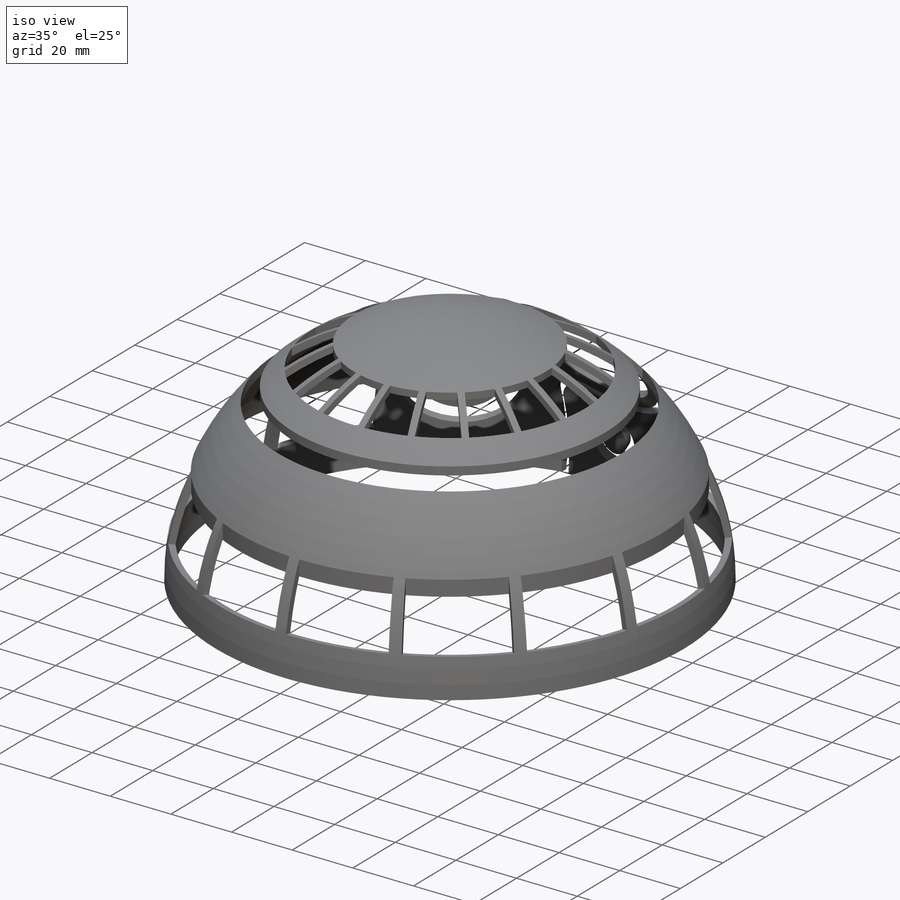
[diagram: iso view]
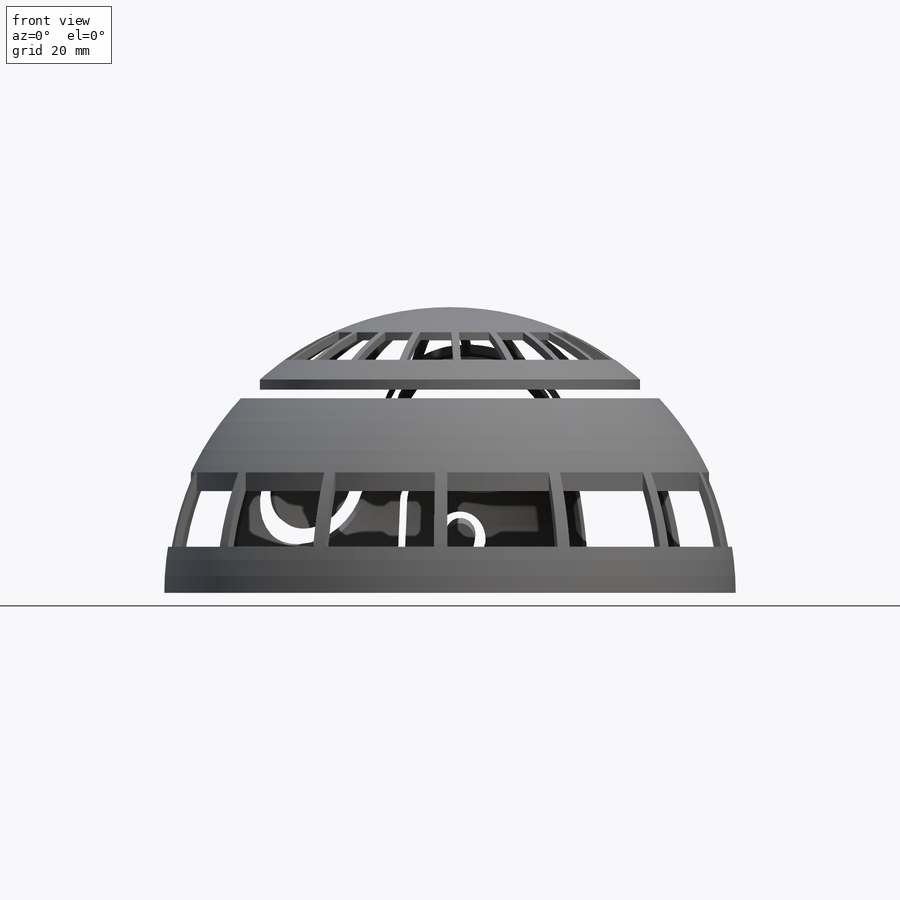
[diagram: front view]
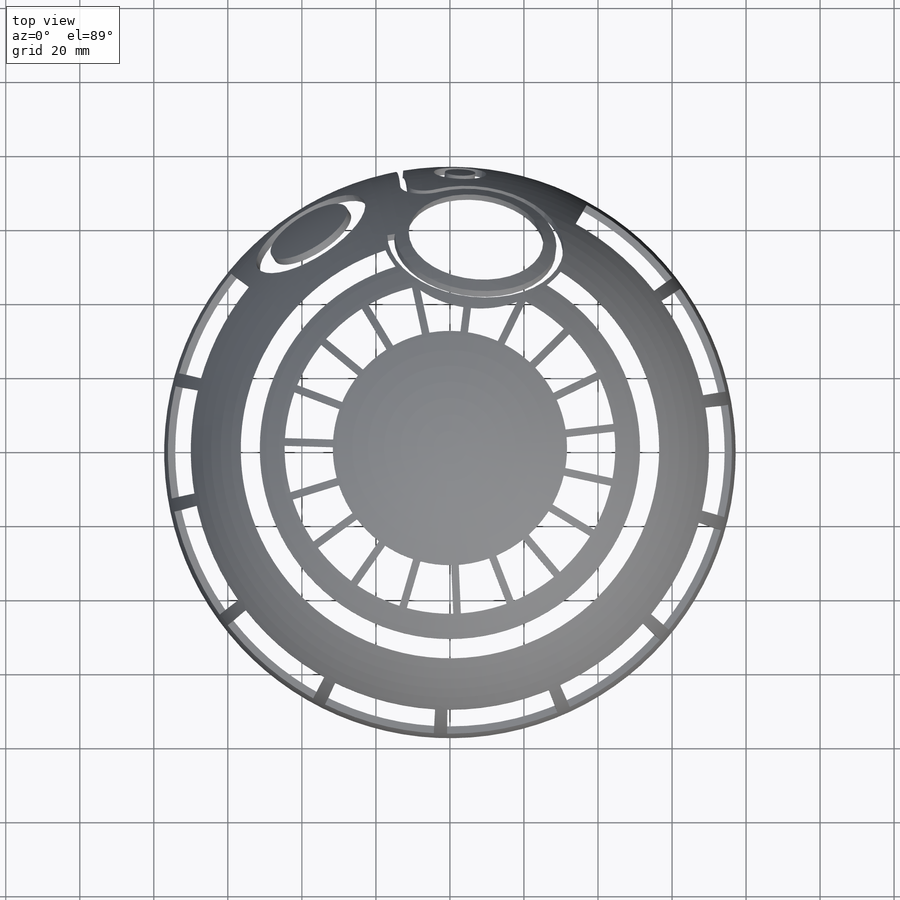
[diagram: top view]
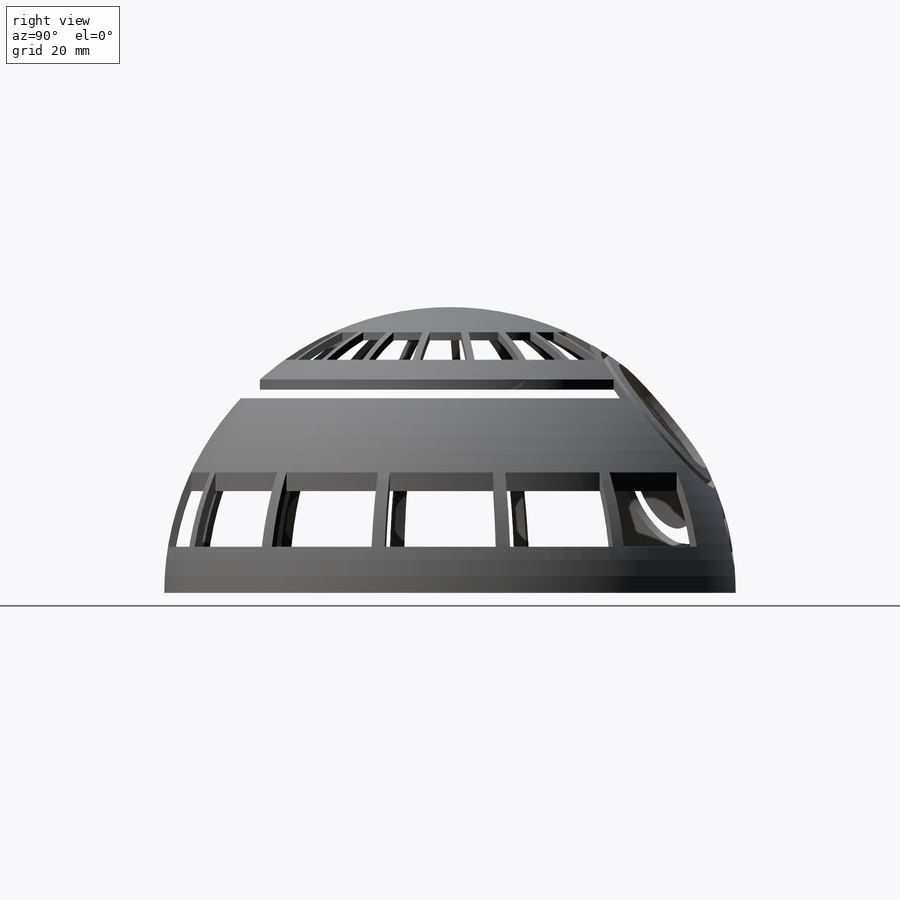
[diagram: right view]
SOLIDWORKS PART (.sldprt)
format: sldprt  version: not decoded by parser v0  size: 969,216 bytes
history: native  units: mm
features: sketch x7, cut_extrude x4, plane x3, cut_revolve x2, material x1, revolve x1, shell x1, pattern_circular x1 (+10 scaffold rows collapsed)
feature tree (30):
  scaffold x10  (default folders/planes/origin — collapsed)
  material  "材质 <未指定>"
  plane  "前视基准面"
  plane  "上视基准面"
  plane  "右视基准面"
  sketch  "草图1"  dims[D1=~229.364602mm D2=75.2mm]
  revolve  "旋转1"  Angle=360deg
  shell  "抽壳1"  Thickness=0.5mm
  sketch  "草图2"  dims[c1.D28=~56.825562mm c1.D1=0.0mm c1.D2=0.0mm c1.D3=0.0mm c1.D4=0.0mm c1.D5=0.0mm c1.D6=0.0mm c1.D7=0.0mm c1.D8=0.0mm c1.D9=0.0mm c1.D10=0.0mm c1.D11=0.0mm c1.D12=0.0mm c1.D13=0.0mm c1.D14=0.0mm c1.D15=0.0mm c1.D16=0.0mm c1.D17=0.0mm c1.D18=0.0mm c1.D19=0.0mm c1.D20=0.0mm c1.D21=0.0mm c1.D22=0.0mm c1.D23=0.0mm c1.D24=0.0mm c1.D25=0.0mm c1.D26=0.0mm c1.D27=0.0mm c2.D28=0.0mm c2.D29=0.0mm c2.D30=0.0mm c2.D31=0.0mm c2.D32=0.0mm]
  cut_extrude  "切除-拉伸1"  Depth=229mm
  sketch  "草图3"  dims[D1=~28.862096mm]
  cut_revolve  "切除-旋转1"  Angle=360deg
  sketch  "草图5"  dims[D1=~157.805468mm]
  cut_revolve  "切除-旋转3"  Angle=23deg
  pattern_circular  "阵列(圆周)2"  Count=14 Angle=360deg
  sketch  "草图6"  dims[D1=34.0mm]
  cut_extrude  "切除-拉伸2"  Depth=20mm
  sketch  "草图7"  dims[c1.D1=5.0mm c1.D3=~23.914054mm c2.D1=~38.991706mm c2.D2=~42.306642mm c2.D3=2.0mm c3.D2=2.0mm]
  cut_extrude  "切除-拉伸3"  Depth=20mm
  sketch  "草图8"  dims[D1=~44.796211mm D2=~130.313066mm]
  cut_extrude  "切除-拉伸4"  Depth=190mm
decode coverage: 16 of 16 modeling features carry decoded parameters
note: ~ marks probable driven/reference dimensions
note: suppression state not decoded; provenance and decode notes live in map.json
